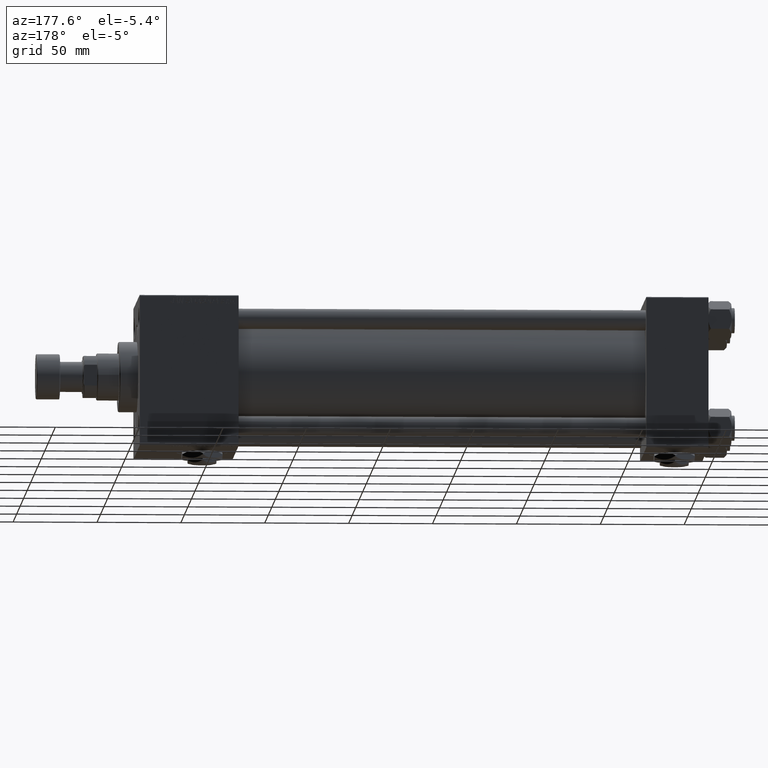
[diagram: clean part render]
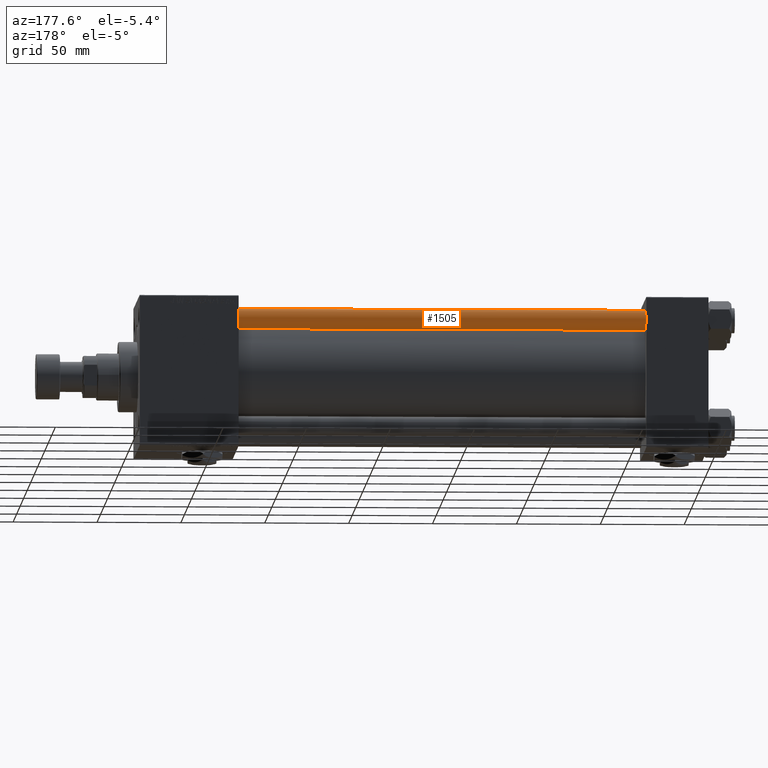
[diagram: same view with one face highlighted and labeled with its STEP entity id]
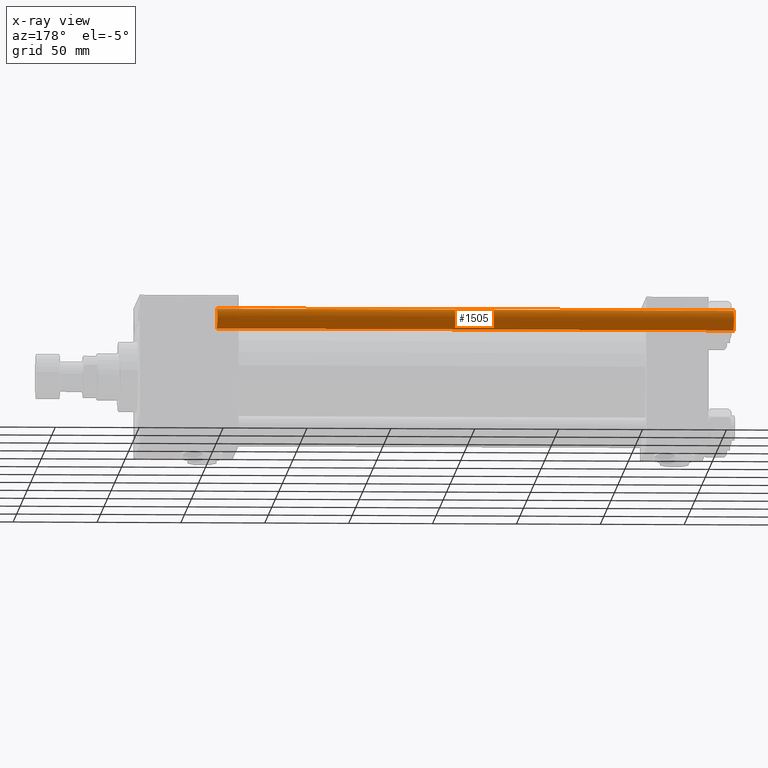
[diagram: x-ray of the same camera — body ghosted, the highlighted face saturated]
A machine part, auxiliary view. The second image highlights one B-rep face of the part: STEP entity #1505.
The next image is the same camera in x-ray: the body ghosted, the highlighted face saturated — about 0% of this face is hidden behind the body in this view.
In plain terms, the highlighted cylindrical surface (edge-blend (fillet) strip) has radius 6 mm, axis along (-1, 0, 0).
Its self-contained STEP definition (entity closure, byte-faithful):
#322 = LINE ( 'NONE', #32853, #24265 ) ;
#1505 = ADVANCED_FACE ( 'NONE', ( #18148 ), #48546, .T. ) ;
#3636 = EDGE_CURVE ( 'NONE', #21544, #6914, #322, .T. ) ;
#5565 = ORIENTED_EDGE ( 'NONE', *, *, #39568, .T. ) ;
#5880 = CIRCLE ( 'NONE', #28013, 6.000000000000000888 ) ;
#6914 = VERTEX_POINT ( 'NONE', #24608 ) ;
#8845 = AXIS2_PLACEMENT_3D ( 'NONE', #19734, #35472, #23203 ) ;
#9239 = CARTESIAN_POINT ( 'NONE',  ( 6.000000000000000888, 7.347880794884120722E-16, 0.5000000000000004441 ) ) ;
#10927 = DIRECTION ( 'NONE',  ( 1.000000000000000000, 0.000000000000000000, 0.000000000000000000 ) ) ;
#11914 = CARTESIAN_POINT ( 'NONE',  ( 0.000000000000000000, 0.000000000000000000, 308.5000000000000000 ) ) ;
#13526 = ORIENTED_EDGE ( 'NONE', *, *, #44204, .T. ) ;
#13742 = LINE ( 'NONE', #46559, #42276 ) ;
#15877 = CARTESIAN_POINT ( 'NONE',  ( -6.000000000000000888, 0.000000000000000000, 308.5000000000000000 ) ) ;
#18148 = FACE_OUTER_BOUND ( 'NONE', #22906, .T. ) ;
#19477 = CARTESIAN_POINT ( 'NONE',  ( 6.000000000000000888, 7.347880794884120722E-16, 308.5000000000000000 ) ) ;
#19734 = CARTESIAN_POINT ( 'NONE',  ( 0.000000000000000000, 0.000000000000000000, 309.0000000000000000 ) ) ;
#21544 = VERTEX_POINT ( 'NONE', #15877 ) ;
#22906 = EDGE_LOOP ( 'NONE', ( #13526, #5565, #32245, #37784 ) ) ;
#23190 = CARTESIAN_POINT ( 'NONE',  ( 0.000000000000000000, 0.000000000000000000, 0.5000000000000004441 ) ) ;
#23203 = DIRECTION ( 'NONE',  ( -1.000000000000000000, 0.000000000000000000, 0.000000000000000000 ) ) ;
#23248 = EDGE_CURVE ( 'NONE', #34456, #6914, #25634, .T. ) ;
#24265 = VECTOR ( 'NONE', #37375, 1000.000000000000000 ) ;
#24608 = CARTESIAN_POINT ( 'NONE',  ( -6.000000000000000888, 0.000000000000000000, 0.5000000000000004441 ) ) ;
#25634 = CIRCLE ( 'NONE', #34108, 6.000000000000000888 ) ;
#28013 = AXIS2_PLACEMENT_3D ( 'NONE', #11914, #32441, #48733 ) ;
#30000 = DIRECTION ( 'NONE',  ( -0.000000000000000000, -0.000000000000000000, -1.000000000000000000 ) ) ;
#32245 = ORIENTED_EDGE ( 'NONE', *, *, #23248, .T. ) ;
#32441 = DIRECTION ( 'NONE',  ( 0.000000000000000000, 0.000000000000000000, -1.000000000000000000 ) ) ;
#32853 = CARTESIAN_POINT ( 'NONE',  ( -6.000000000000000888, 0.000000000000000000, 309.0000000000000000 ) ) ;
#34108 = AXIS2_PLACEMENT_3D ( 'NONE', #23190, #42496, #10927 ) ;
#34456 = VERTEX_POINT ( 'NONE', #9239 ) ;
#35472 = DIRECTION ( 'NONE',  ( -0.000000000000000000, -0.000000000000000000, -1.000000000000000000 ) ) ;
#37375 = DIRECTION ( 'NONE',  ( -0.000000000000000000, -0.000000000000000000, -1.000000000000000000 ) ) ;
#37784 = ORIENTED_EDGE ( 'NONE', *, *, #3636, .F. ) ;
#38696 = VERTEX_POINT ( 'NONE', #19477 ) ;
#39568 = EDGE_CURVE ( 'NONE', #38696, #34456, #13742, .T. ) ;
#42276 = VECTOR ( 'NONE', #30000, 1000.000000000000000 ) ;
#42496 = DIRECTION ( 'NONE',  ( -0.000000000000000000, -0.000000000000000000, 1.000000000000000000 ) ) ;
#44204 = EDGE_CURVE ( 'NONE', #21544, #38696, #5880, .T. ) ;
#46559 = CARTESIAN_POINT ( 'NONE',  ( 6.000000000000000888, 7.347880794884120722E-16, 309.0000000000000000 ) ) ;
#48546 = CYLINDRICAL_SURFACE ( 'NONE', #8845, 6.000000000000000888 ) ;
#48733 = DIRECTION ( 'NONE',  ( 1.000000000000000000, 0.000000000000000000, 0.000000000000000000 ) ) ;